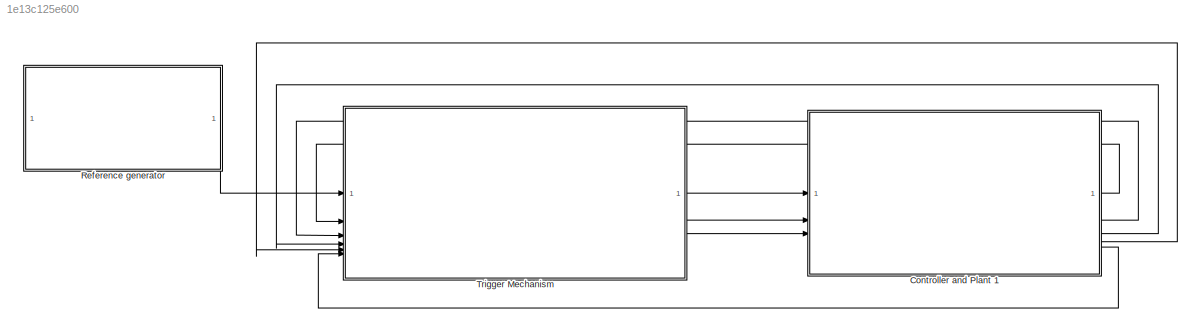
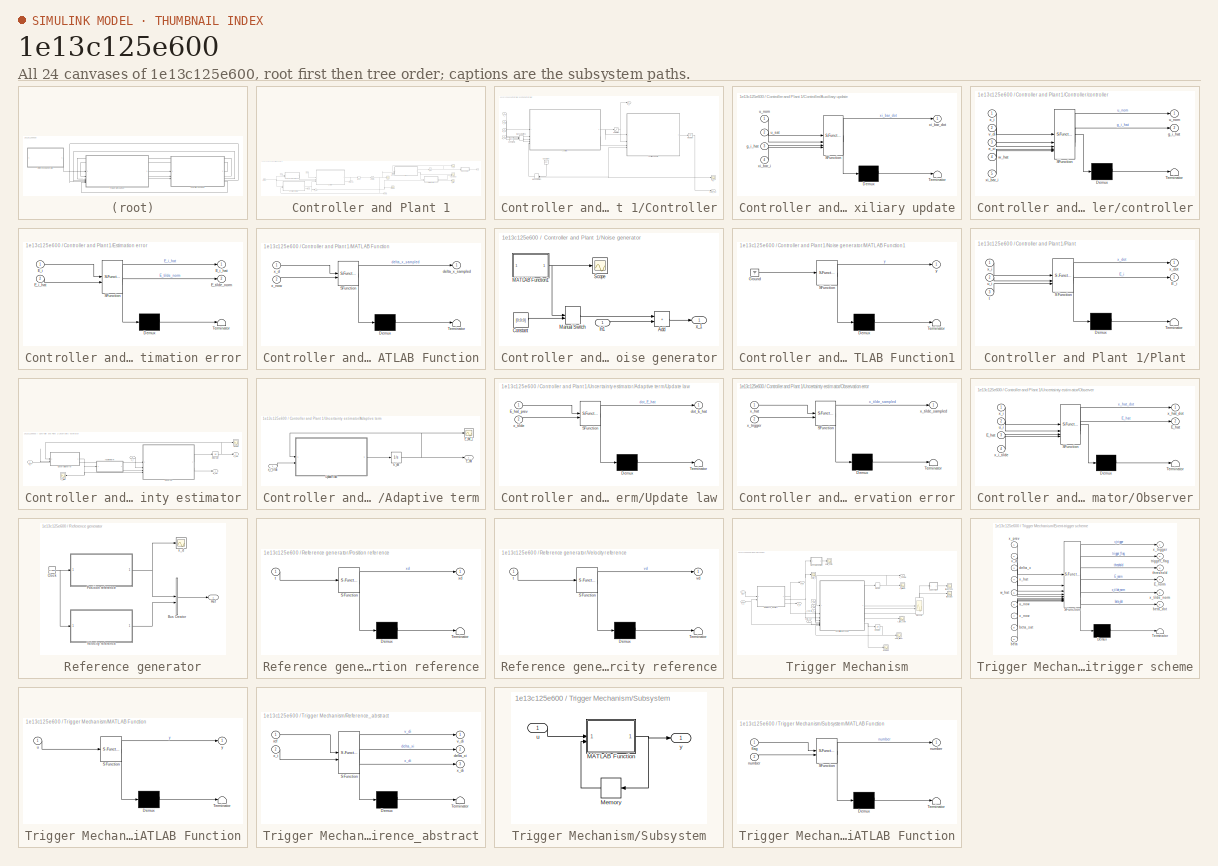
[diagram: thumbnail index - all 24 canvases of the model, root first then tree order]
MODEL slx_1e13c125e600
KIND model
CONFIG AbsTol = auto
CONFIG EnableMultiTasking = off
CONFIG FixedStep = 0.016
CONFIG MaxStep = auto
CONFIG MinStep = auto
CONFIG RelTol = 1e-3
CONFIG SampleTimeConstraint = Unconstrained
CONFIG SolverName = ode5
CONFIG StartTime = 0.0
CONFIG StopTime = 60.0
BLOCK [SubSystem] Controller and Plant 1
BLOCK [Clock] Controller and Plant 1/Clock1
BLOCK [SubSystem] Controller and Plant 1/Controller
BLOCK [SubSystem] Controller and Plant 1/Controller/Auxiliary update
  ErrorFcn = Stateflow.Translate.translate
  PermitHierarchicalResolution = ExplicitOnly
  SFBlockType = MATLAB Function
  TreatAsAtomicUnit = on
BLOCK [Demux] Controller and Plant 1/Controller/Auxiliary update/ Demux 
  Outputs = 1
BLOCK [S-Function] Controller and Plant 1/Controller/Auxiliary update/ SFunction 
  EnableBusSupport = on
  FunctionName = sf_sfun
  PortCounts = [4 2]
  SFcnIsStateOwnerBlock = off
  SFunctionDeploymentMode = off
  Tag = Stateflow S-Function 1
BLOCK [Terminator] Controller and Plant 1/Controller/Auxiliary update/ Terminator 
BLOCK [Inport] Controller and Plant 1/Controller/Auxiliary update/g_i_hat
  Port = 3
BLOCK [Inport] Controller and Plant 1/Controller/Auxiliary update/u_nom
BLOCK [Inport] Controller and Plant 1/Controller/Auxiliary update/u_sat
  Port = 2
BLOCK [Outport] Controller and Plant 1/Controller/Auxiliary update/xi_bar_dot
BLOCK [Inport] Controller and Plant 1/Controller/Auxiliary update/xi_bar_i
  Port = 4
BLOCK [Constant] Controller and Plant 1/Controller/Constant
  NameLocation = left
  Value = [0;0;0]
BLOCK [Constant] Controller and Plant 1/Controller/Constant1
  Value = [0;0;0]
  VectorParams1D = off
BLOCK [Integrator] Controller and Plant 1/Controller/Integrator
  InitialCondition = [0.1;0.1;0.1]
BLOCK [ManualSwitch] Controller and Plant 1/Controller/Manual Switch
  CurrentSetting = 0
  NameLocation = top
BLOCK [ManualSwitch] Controller and Plant 1/Controller/Manual Switch1
BLOCK [Saturate] Controller and Plant 1/Controller/Saturation
  LowerLimit = -0.2
  UpperLimit = 0.2
BLOCK [Outport] Controller and Plant 1/Controller/beta_sat
  Port = 2
BLOCK [SubSystem] Controller and Plant 1/Controller/controller
  ErrorFcn = Stateflow.Translate.translate
  PermitHierarchicalResolution = ExplicitOnly
  SFBlockType = MATLAB Function
  TreatAsAtomicUnit = on
BLOCK [Demux] Controller and Plant 1/Controller/controller/ Demux 
  Outputs = 1
BLOCK [S-Function] Controller and Plant 1/Controller/controller/ SFunction 
  EnableBusSupport = on
  FunctionName = sf_sfun
  PortCounts = [5 3]
  SFcnIsStateOwnerBlock = off
  SFunctionDeploymentMode = off
  Tag = Stateflow S-Function 75
BLOCK [Terminator] Controller and Plant 1/Controller/controller/ Terminator 
BLOCK [Inport] Controller and Plant 1/Controller/controller/e_xi
  Port = 3
BLOCK [Outport] Controller and Plant 1/Controller/controller/g_i_hat
  Port = 2
BLOCK [Outport] Controller and Plant 1/Controller/controller/u_nom
BLOCK [Inport] Controller and Plant 1/Controller/controller/v_di
  Port = 2
BLOCK [Inport] Controller and Plant 1/Controller/controller/w_hat
  Port = 4
BLOCK [Inport] Controller and Plant 1/Controller/controller/x_i
BLOCK [Inport] Controller and Plant 1/Controller/controller/xi_bar_i
  Port = 5
BLOCK [Inport] Controller and Plant 1/Controller/e_xi
  Port = 2
BLOCK [Outport] Controller and Plant 1/Controller/u_i
BLOCK [Inport] Controller and Plant 1/Controller/v_di
BLOCK [Inport] Controller and Plant 1/Controller/w_hat
  Port = 4
BLOCK [Inport] Controller and Plant 1/Controller/x_i
  Port = 3
BLOCK [Scope] Controller and Plant 1/Controller/xi_i
  Floating = off
  NumInputPorts = 1
  ScopeSpecificationString = Simulink.scopes.TimeScopeBlockCfg('CurrentConfiguration', extmgr.ConfigurationSet(extmgr.Configuration('Core','General UI',true),extmgr.Configuration('Core','Source UI',true),extmgr.Configuration('Sources','WiredSimulink',true,'DataLoggingVariableName','beta_sat','DataLoggingSaveFormat','Structure','DataLogging',true),extmgr.Configuration('Visuals','Time Domain',true,'SerializedDisplays',{struct('...<+1529ch>
BLOCK [SubSystem] Controller and Plant 1/Estimation error
  ErrorFcn = Stateflow.Translate.translate
  PermitHierarchicalResolution = ExplicitOnly
  SFBlockType = MATLAB Function
  TreatAsAtomicUnit = on
BLOCK [Demux] Controller and Plant 1/Estimation error/ Demux 
  Outputs = 1
BLOCK [S-Function] Controller and Plant 1/Estimation error/ SFunction 
  EnableBusSupport = on
  FunctionName = sf_sfun
  PortCounts = [2 3]
  SFcnIsStateOwnerBlock = off
  SFunctionDeploymentMode = off
  Tag = Stateflow S-Function 7
BLOCK [Terminator] Controller and Plant 1/Estimation error/ Terminator 
BLOCK [Inport] Controller and Plant 1/Estimation error/E_i
BLOCK [Outport] Controller and Plant 1/Estimation error/E_i_hat
BLOCK [Inport] Controller and Plant 1/Estimation error/E_i_hat 
  Port = 2
BLOCK [Outport] Controller and Plant 1/Estimation error/E_tilde_norm
  Port = 2
BLOCK [SubSystem] Controller and Plant 1/MATLAB Function
  ErrorFcn = Stateflow.Translate.translate
  PermitHierarchicalResolution = ExplicitOnly
  SFBlockType = MATLAB Function
  TreatAsAtomicUnit = on
BLOCK [Demux] Controller and Plant 1/MATLAB Function/ Demux 
  Outputs = 1
BLOCK [S-Function] Controller and Plant 1/MATLAB Function/ SFunction 
  EnableBusSupport = on
  FunctionName = sf_sfun
  PortCounts = [2 2]
  SFcnIsStateOwnerBlock = off
  SFunctionDeploymentMode = off
  Tag = Stateflow S-Function 5
BLOCK [Terminator] Controller and Plant 1/MATLAB Function/ Terminator 
BLOCK [Outport] Controller and Plant 1/MATLAB Function/delta_x_sampled
BLOCK [Inport] Controller and Plant 1/MATLAB Function/x_d
BLOCK [Inport] Controller and Plant 1/MATLAB Function/x_now
  Port = 2
BLOCK [Memory] Controller and Plant 1/Memory
  InitialCondition = [0;0;0]
BLOCK [SubSystem] Controller and Plant 1/Noise generator
BLOCK [Sum] Controller and Plant 1/Noise generator/Add
  IconShape = rectangular
BLOCK [Constant] Controller and Plant 1/Noise generator/Constant
  Value = [0;0;0]
BLOCK [Inport] Controller and Plant 1/Noise generator/In1
BLOCK [SubSystem] Controller and Plant 1/Noise generator/MATLAB Function1
  ErrorFcn = Stateflow.Translate.translate
  PermitHierarchicalResolution = ExplicitOnly
  SFBlockType = MATLAB Function
  TreatAsAtomicUnit = on
BLOCK [Demux] Controller and Plant 1/Noise generator/MATLAB Function1/ Demux 
  Outputs = 1
BLOCK [Ground] Controller and Plant 1/Noise generator/MATLAB Function1/ Ground 
BLOCK [S-Function] Controller and Plant 1/Noise generator/MATLAB Function1/ SFunction 
  EnableBusSupport = on
  FunctionName = sf_sfun
  PortCounts = [1 2]
  SFcnIsStateOwnerBlock = off
  SFunctionDeploymentMode = off
  Tag = Stateflow S-Function 9
BLOCK [Terminator] Controller and Plant 1/Noise generator/MATLAB Function1/ Terminator 
BLOCK [Outport] Controller and Plant 1/Noise generator/MATLAB Function1/y
BLOCK [ManualSwitch] Controller and Plant 1/Noise generator/Manual Switch
  CurrentSetting = 0
BLOCK [Scope] Controller and Plant 1/Noise generator/Scope
  Floating = off
  NumInputPorts = 1
  ScopeSpecificationString = Simulink.scopes.TimeScopeBlockCfg('CurrentConfiguration', extmgr.ConfigurationSet(extmgr.Configuration('Core','General UI',true),extmgr.Configuration('Core','Source UI',true),extmgr.Configuration('Sources','WiredSimulink',true,'DataLoggingVariableName','ScopeData1'),extmgr.Configuration('Visuals','Time Domain',true,'SerializedDisplays',{struct('MinYLimReal','-0.04657','MaxYLimReal','0.04493','YLab...<+1419ch>
BLOCK [Outport] Controller and Plant 1/Noise generator/x_1
BLOCK [SubSystem] Controller and Plant 1/Plant
  ErrorFcn = Stateflow.Translate.translate
  PermitHierarchicalResolution = ExplicitOnly
  SFBlockType = MATLAB Function
  TreatAsAtomicUnit = on
BLOCK [Demux] Controller and Plant 1/Plant/ Demux 
  Outputs = 1
BLOCK [S-Function] Controller and Plant 1/Plant/ SFunction 
  EnableBusSupport = on
  FunctionName = sf_sfun
  PortCounts = [3 3]
  SFcnIsStateOwnerBlock = off
  SFunctionDeploymentMode = off
  Tag = Stateflow S-Function 2
BLOCK [Terminator] Controller and Plant 1/Plant/ Terminator 
BLOCK [Outport] Controller and Plant 1/Plant/E_i
  Port = 2
BLOCK [Inport] Controller and Plant 1/Plant/t
  Port = 3
BLOCK [Inport] Controller and Plant 1/Plant/u_i
  Port = 2
BLOCK [Outport] Controller and Plant 1/Plant/x_dot
BLOCK [Inport] Controller and Plant 1/Plant/x_i
BLOCK [Saturate] Controller and Plant 1/Saturation
  LowerLimit = LowerLimit
  UpperLimit = UpperLimit
BLOCK [Scope] Controller and Plant 1/Scope1
  Floating = off
  NumInputPorts = 1
  ScopeSpecificationString = Simulink.scopes.TimeScopeBlockCfg('CurrentConfiguration', extmgr.ConfigurationSet(extmgr.Configuration('Core','General UI',true),extmgr.Configuration('Core','Source UI',true),extmgr.Configuration('Sources','WiredSimulink',true,'DataLoggingVariableName','ScopeData1'),extmgr.Configuration('Visuals','Time Domain',true,'SerializedDisplays',{struct('MinYLimReal','-0.1352','MaxYLimReal','0.13497','YLabe...<+1477ch>
BLOCK [SubSystem] Controller and Plant 1/Uncertainty estimator
BLOCK [SubSystem] Controller and Plant 1/Uncertainty estimator/Adaptive term
  NameLocation = top
BLOCK [Integrator] Controller and Plant 1/Uncertainty estimator/Adaptive term/E_dot
  InitialCondition = [0;0;0]
BLOCK [Outport] Controller and Plant 1/Uncertainty estimator/Adaptive term/E_hat
BLOCK [Scope] Controller and Plant 1/Uncertainty estimator/Adaptive term/E_hat_1
  Floating = off
  NumInputPorts = 1
  ScopeSpecificationString = Simulink.scopes.TimeScopeBlockCfg('CurrentConfiguration', extmgr.ConfigurationSet(extmgr.Configuration('Core','General UI',true),extmgr.Configuration('Core','Source UI',true),extmgr.Configuration('Sources','WiredSimulink',true,'DataLoggingVariableName','ScopeData2'),extmgr.Configuration('Visuals','Time Domain',true,'SerializedDisplays',{struct('MinYLimReal','-0.13253','MaxYLimReal','0.16244','YLab...<+1430ch>
BLOCK [SubSystem] Controller and Plant 1/Uncertainty estimator/Adaptive term/Update law
  ErrorFcn = Stateflow.Translate.translate
  PermitHierarchicalResolution = ExplicitOnly
  SFBlockType = MATLAB Function
  TreatAsAtomicUnit = on
BLOCK [Demux] Controller and Plant 1/Uncertainty estimator/Adaptive term/Update law/ Demux 
  Outputs = 1
BLOCK [S-Function] Controller and Plant 1/Uncertainty estimator/Adaptive term/Update law/ SFunction 
  EnableBusSupport = on
  FunctionName = sf_sfun
  PortCounts = [2 2]
  SFcnIsStateOwnerBlock = off
  SFunctionDeploymentMode = off
  Tag = Stateflow S-Function 6
BLOCK [Terminator] Controller and Plant 1/Uncertainty estimator/Adaptive term/Update law/ Terminator 
BLOCK [Inport] Controller and Plant 1/Uncertainty estimator/Adaptive term/Update law/E_hat_prev
BLOCK [Outport] Controller and Plant 1/Uncertainty estimator/Adaptive term/Update law/dot_E_hat
BLOCK [Inport] Controller and Plant 1/Uncertainty estimator/Adaptive term/Update law/x_tilde
  Port = 2
BLOCK [Inport] Controller and Plant 1/Uncertainty estimator/Adaptive term/x_i_tilde
BLOCK [Outport] Controller and Plant 1/Uncertainty estimator/E_hat
BLOCK [Integrator] Controller and Plant 1/Uncertainty estimator/Integrator
  InitialCondition = x_hat_1
BLOCK [SubSystem] Controller and Plant 1/Uncertainty estimator/Observation error
  ErrorFcn = Stateflow.Translate.translate
  PermitHierarchicalResolution = ExplicitOnly
  SFBlockType = MATLAB Function
  TreatAsAtomicUnit = on
BLOCK [Demux] Controller and Plant 1/Uncertainty estimator/Observation error/ Demux 
  Outputs = 1
BLOCK [S-Function] Controller and Plant 1/Uncertainty estimator/Observation error/ SFunction 
  EnableBusSupport = on
  FunctionName = sf_sfun
  PortCounts = [2 2]
  SFcnIsStateOwnerBlock = off
  SFunctionDeploymentMode = off
  Tag = Stateflow S-Function 4
BLOCK [Terminator] Controller and Plant 1/Uncertainty estimator/Observation error/ Terminator 
BLOCK [Inport] Controller and Plant 1/Uncertainty estimator/Observation error/x_hat
BLOCK [Outport] Controller and Plant 1/Uncertainty estimator/Observation error/x_tilde_sampled
BLOCK [Inport] Controller and Plant 1/Uncertainty estimator/Observation error/x_trigger
  Port = 2
BLOCK [SubSystem] Controller and Plant 1/Uncertainty estimator/Observer
  ErrorFcn = Stateflow.Translate.translate
  PermitHierarchicalResolution = ExplicitOnly
  SFBlockType = MATLAB Function
  TreatAsAtomicUnit = on
BLOCK [Demux] Controller and Plant 1/Uncertainty estimator/Observer/ Demux 
  Outputs = 1
BLOCK [S-Function] Controller and Plant 1/Uncertainty estimator/Observer/ SFunction 
  EnableBusSupport = on
  FunctionName = sf_sfun
  PortCounts = [4 3]
  SFcnIsStateOwnerBlock = off
  SFunctionDeploymentMode = off
  Tag = Stateflow S-Function 69
BLOCK [Terminator] Controller and Plant 1/Uncertainty estimator/Observer/ Terminator 
BLOCK [Outport] Controller and Plant 1/Uncertainty estimator/Observer/E_hat
  Port = 2
BLOCK [Inport] Controller and Plant 1/Uncertainty estimator/Observer/E_hat 
  Port = 3
BLOCK [Inport] Controller and Plant 1/Uncertainty estimator/Observer/u_i
  Port = 2
BLOCK [Outport] Controller and Plant 1/Uncertainty estimator/Observer/x_hat_dot
BLOCK [Inport] Controller and Plant 1/Uncertainty estimator/Observer/x_i
BLOCK [Inport] Controller and Plant 1/Uncertainty estimator/Observer/x_i_tilde
  Port = 4
BLOCK [Scope] Controller and Plant 1/Uncertainty estimator/Scope
  Floating = off
  NumInputPorts = 1
  ScopeSpecificationString = Simulink.scopes.TimeScopeBlockCfg('CurrentConfiguration', extmgr.ConfigurationSet(extmgr.Configuration('Core','General UI',true),extmgr.Configuration('Core','Source UI',true),extmgr.Configuration('Sources','WiredSimulink',true,'DataLoggingVariableName','ScopeData3'),extmgr.Configuration('Visuals','Time Domain',true,'SerializedDisplays',{struct('MinYLimReal','-0.84382','MaxYLimReal','1.59437','YLab...<+1474ch>
BLOCK [Inport] Controller and Plant 1/Uncertainty estimator/u_i
  Port = 2
BLOCK [Outport] Controller and Plant 1/Uncertainty estimator/x_hat
  Port = 2
BLOCK [Inport] Controller and Plant 1/Uncertainty estimator/x_i
BLOCK [Scope] Controller and Plant 1/Uncertainty estimator/x_i_tilde
  Floating = off
  NameLocation = top
  NumInputPorts = 1
  ScopeSpecificationString = Simulink.scopes.TimeScopeBlockCfg('CurrentConfiguration', extmgr.ConfigurationSet(extmgr.Configuration('Core','General UI',true),extmgr.Configuration('Core','Source UI',true),extmgr.Configuration('Sources','WiredSimulink',true,'DataLoggingVariableName','x_tilde_trigger','DataLoggingSaveFormat','Structure','DataLogging',true),extmgr.Configuration('Visuals','Time Domain',true,'SerializedDisplays',{s...<+1555ch>
BLOCK [Outport] Controller and Plant 1/beta_sat
  Port = 5
BLOCK [Scope] Controller and Plant 1/esti_compare
  Floating = off
  NumInputPorts = 2
  ScopeSpecificationString = Simulink.scopes.TimeScopeBlockCfg('CurrentConfiguration', extmgr.ConfigurationSet(extmgr.Configuration('Core','General UI',true),extmgr.Configuration('Core','Source UI',true),extmgr.Configuration('Sources','WiredSimulink',true,'DataLoggingVariableName','ScopeData1'),extmgr.Configuration('Visuals','Time Domain',true,'SerializedDisplays',{struct('MinYLimReal','-0.13131','MaxYLimReal','0.18183','YLab...<+1588ch>
BLOCK [Scope] Controller and Plant 1/u
  Floating = off
  NumInputPorts = 1
  ScopeSpecificationString = Simulink.scopes.TimeScopeBlockCfg('CurrentConfiguration', extmgr.ConfigurationSet(extmgr.Configuration('Core','General UI',true),extmgr.Configuration('Core','Source UI',true),extmgr.Configuration('Sources','WiredSimulink',true,'DataLoggingVariableName','u','DataLoggingSaveFormat','Array','DataLogging',true),extmgr.Configuration('Visuals','Time Domain',true,'SerializedDisplays',{struct('MinYLimReal...<+1500ch>
BLOCK [Outport] Controller and Plant 1/u_hat
  Port = 4
BLOCK [Outport] Controller and Plant 1/u_now
  Port = 3
BLOCK [Inport] Controller and Plant 1/v_d1
BLOCK [Scope] Controller and Plant 1/w_tilde
  Floating = off
  NumInputPorts = 1
  ScopeSpecificationString = Simulink.scopes.TimeScopeBlockCfg('CurrentConfiguration', extmgr.ConfigurationSet(extmgr.Configuration('Core','General UI',true),extmgr.Configuration('Core','Source UI',true),extmgr.Configuration('Sources','WiredSimulink',true,'DataLoggingVariableName','w_tilde_norm','DataLoggingSaveFormat','Array','DataLogging',true),extmgr.Configuration('Visuals','Time Domain',true,'SerializedDisplays',{struct('...<+1527ch>
BLOCK [Scope] Controller and Plant 1/x
  Floating = off
  NumInputPorts = 1
  ScopeSpecificationString = Simulink.scopes.TimeScopeBlockCfg('CurrentConfiguration', extmgr.ConfigurationSet(extmgr.Configuration('Core','General UI',true),extmgr.Configuration('Core','Source UI',true),extmgr.Configuration('Sources','WiredSimulink',true,'DataLoggingVariableName','x','DataLoggingSaveFormat','Array','DataLogging',true),extmgr.Configuration('Visuals','Time Domain',true,'SerializedDisplays',{struct('MinYLimReal...<+1521ch>
BLOCK [Outport] Controller and Plant 1/x_1
BLOCK [Inport] Controller and Plant 1/x_d
  Port = 2
BLOCK [Outport] Controller and Plant 1/x_hat
  Port = 2
BLOCK [Integrator] Controller and Plant 1/x_int
  InitialCondition = InitialCondition
BLOCK [Inport] Controller and Plant 1/x_trigger
  Port = 3
BLOCK [SubSystem] Reference generator
BLOCK [BusCreator] Reference generator/Bus Creator
  DisplayOption = bar
  InheritFromInputs = on
  Inputs = 2
BLOCK [Clock] Reference generator/Clock
BLOCK [SubSystem] Reference generator/Position reference
  ErrorFcn = Stateflow.Translate.translate
  PermitHierarchicalResolution = ExplicitOnly
  SFBlockType = MATLAB Function
  TreatAsAtomicUnit = on
BLOCK [Demux] Reference generator/Position reference/ Demux 
  Outputs = 1
BLOCK [S-Function] Reference generator/Position reference/ SFunction 
  EnableBusSupport = on
  FunctionName = sf_sfun
  PortCounts = [1 2]
  SFcnIsStateOwnerBlock = off
  SFunctionDeploymentMode = off
  Tag = Stateflow S-Function 105
BLOCK [Terminator] Reference generator/Position reference/ Terminator 
BLOCK [Inport] Reference generator/Position reference/t
BLOCK [Outport] Reference generator/Position reference/xd
BLOCK [Outport] Reference generator/Ref
BLOCK [SubSystem] Reference generator/Velocity reference
  ErrorFcn = Stateflow.Translate.translate
  PermitHierarchicalResolution = ExplicitOnly
  SFBlockType = MATLAB Function
  TreatAsAtomicUnit = on
BLOCK [Demux] Reference generator/Velocity reference/ Demux 
  Outputs = 1
BLOCK [S-Function] Reference generator/Velocity reference/ SFunction 
  EnableBusSupport = on
  FunctionName = sf_sfun
  PortCounts = [1 2]
  SFcnIsStateOwnerBlock = off
  SFunctionDeploymentMode = off
  Tag = Stateflow S-Function 106
BLOCK [Terminator] Reference generator/Velocity reference/ Terminator 
BLOCK [Inport] Reference generator/Velocity reference/t
BLOCK [Outport] Reference generator/Velocity reference/vd
BLOCK [Scope] Reference generator/x_d
  Floating = off
  NumInputPorts = 1
  ScopeSpecificationString = Simulink.scopes.TimeScopeBlockCfg('CurrentConfiguration', extmgr.ConfigurationSet(extmgr.Configuration('Core','General UI',true),extmgr.Configuration('Core','Source UI',true),extmgr.Configuration('Sources','WiredSimulink',true,'DataLoggingVariableName','ref_x1','DataLogging',true,'DataLoggingSaveFormat','Array'),extmgr.Configuration('Visuals','Time Domain',true,'SerializedDisplays',{struct('MinYLi...<+1820ch>
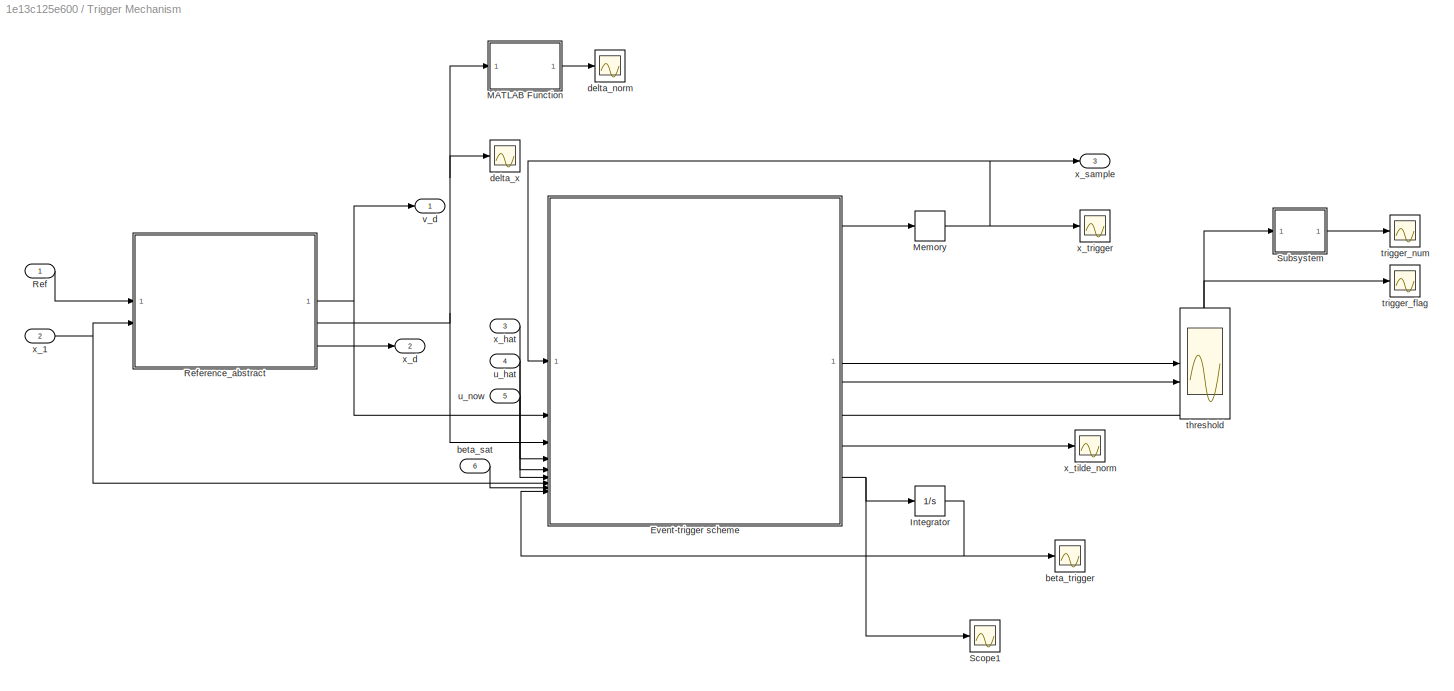
BLOCK [SubSystem] Trigger Mechanism
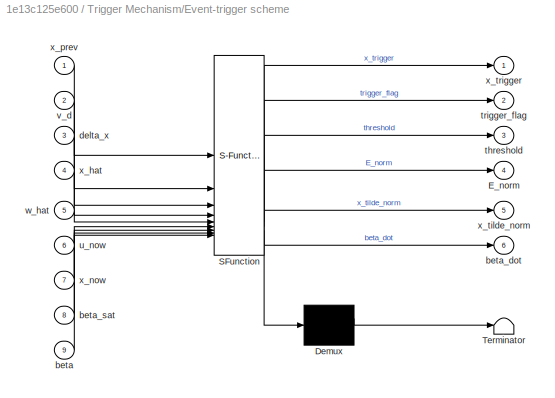
BLOCK [SubSystem] Trigger Mechanism/Event-trigger scheme
  ErrorFcn = Stateflow.Translate.translate
  PermitHierarchicalResolution = ExplicitOnly
  SFBlockType = MATLAB Function
  TreatAsAtomicUnit = on
BLOCK [Demux] Trigger Mechanism/Event-trigger scheme/ Demux 
  Outputs = 1
BLOCK [S-Function] Trigger Mechanism/Event-trigger scheme/ SFunction 
  EnableBusSupport = on
  FunctionName = sf_sfun
  PortCounts = [9 7]
  SFcnIsStateOwnerBlock = off
  SFunctionDeploymentMode = off
  Tag = Stateflow S-Function 14
BLOCK [Terminator] Trigger Mechanism/Event-trigger scheme/ Terminator 
BLOCK [Outport] Trigger Mechanism/Event-trigger scheme/E_norm
  Port = 4
BLOCK [Inport] Trigger Mechanism/Event-trigger scheme/beta
  Port = 9
BLOCK [Outport] Trigger Mechanism/Event-trigger scheme/beta_dot
  Port = 6
BLOCK [Inport] Trigger Mechanism/Event-trigger scheme/beta_sat
  Port = 8
BLOCK [Inport] Trigger Mechanism/Event-trigger scheme/delta_x
  Port = 3
BLOCK [Outport] Trigger Mechanism/Event-trigger scheme/threshold
  Port = 3
BLOCK [Outport] Trigger Mechanism/Event-trigger scheme/trigger_flag
  Port = 2
BLOCK [Inport] Trigger Mechanism/Event-trigger scheme/u_now
  Port = 6
BLOCK [Inport] Trigger Mechanism/Event-trigger scheme/v_d
  Port = 2
BLOCK [Inport] Trigger Mechanism/Event-trigger scheme/w_hat
  Port = 5
BLOCK [Inport] Trigger Mechanism/Event-trigger scheme/x_hat
  Port = 4
BLOCK [Inport] Trigger Mechanism/Event-trigger scheme/x_now
  Port = 7
BLOCK [Inport] Trigger Mechanism/Event-trigger scheme/x_prev
BLOCK [Outport] Trigger Mechanism/Event-trigger scheme/x_tilde_norm
  Port = 5
BLOCK [Outport] Trigger Mechanism/Event-trigger scheme/x_trigger
BLOCK [Integrator] Trigger Mechanism/Integrator
  InitialCondition = [2;2]
BLOCK [SubSystem] Trigger Mechanism/MATLAB Function
  ErrorFcn = Stateflow.Translate.translate
  PermitHierarchicalResolution = ExplicitOnly
  SFBlockType = MATLAB Function
  TreatAsAtomicUnit = on
BLOCK [Demux] Trigger Mechanism/MATLAB Function/ Demux 
  Outputs = 1
BLOCK [S-Function] Trigger Mechanism/MATLAB Function/ SFunction 
  EnableBusSupport = on
  FunctionName = sf_sfun
  PortCounts = [1 2]
  SFcnIsStateOwnerBlock = off
  SFunctionDeploymentMode = off
  Tag = Stateflow S-Function 8
BLOCK [Terminator] Trigger Mechanism/MATLAB Function/ Terminator 
BLOCK [Inport] Trigger Mechanism/MATLAB Function/u
BLOCK [Outport] Trigger Mechanism/MATLAB Function/y
BLOCK [Memory] Trigger Mechanism/Memory
  InitialCondition = [0.8;-1.1;pi/50]
BLOCK [Inport] Trigger Mechanism/Ref
BLOCK [SubSystem] Trigger Mechanism/Reference_abstract
  ErrorFcn = Stateflow.Translate.translate
  PermitHierarchicalResolution = ExplicitOnly
  SFBlockType = MATLAB Function
  TreatAsAtomicUnit = on
BLOCK [Demux] Trigger Mechanism/Reference_abstract/ Demux 
  Outputs = 1
BLOCK [S-Function] Trigger Mechanism/Reference_abstract/ SFunction 
  EnableBusSupport = on
  FunctionName = sf_sfun
  PortCounts = [2 4]
  SFcnIsStateOwnerBlock = off
  SFunctionDeploymentMode = off
  Tag = Stateflow S-Function 3
BLOCK [Terminator] Trigger Mechanism/Reference_abstract/ Terminator 
BLOCK [Outport] Trigger Mechanism/Reference_abstract/delta_xi
  Port = 2
BLOCK [Inport] Trigger Mechanism/Reference_abstract/ref
BLOCK [Outport] Trigger Mechanism/Reference_abstract/v_di
BLOCK [Outport] Trigger Mechanism/Reference_abstract/x_di
  Port = 3
BLOCK [Inport] Trigger Mechanism/Reference_abstract/x_i
  Port = 2
BLOCK [Scope] Trigger Mechanism/Scope1
  Floating = off
  NumInputPorts = 1
  ScopeSpecificationString = Simulink.scopes.TimeScopeBlockCfg('CurrentConfiguration', extmgr.ConfigurationSet(extmgr.Configuration('Core','General UI',true),extmgr.Configuration('Core','Source UI',true),extmgr.Configuration('Sources','WiredSimulink',true,'DataLoggingVariableName','ScopeData3'),extmgr.Configuration('Visuals','Time Domain',true,'SerializedDisplays',{struct('MinYLimReal','-1.80922','MaxYLimReal','0.4948','YLabe...<+1409ch>
BLOCK [SubSystem] Trigger Mechanism/Subsystem
BLOCK [SubSystem] Trigger Mechanism/Subsystem/MATLAB Function
  ErrorFcn = Stateflow.Translate.translate
  PermitHierarchicalResolution = ExplicitOnly
  SFBlockType = MATLAB Function
  TreatAsAtomicUnit = on
BLOCK [Demux] Trigger Mechanism/Subsystem/MATLAB Function/ Demux 
  Outputs = 1
BLOCK [S-Function] Trigger Mechanism/Subsystem/MATLAB Function/ SFunction 
  EnableBusSupport = on
  FunctionName = sf_sfun
  PortCounts = [2 2]
  SFcnIsStateOwnerBlock = off
  SFunctionDeploymentMode = off
  Tag = Stateflow S-Function 11
BLOCK [Terminator] Trigger Mechanism/Subsystem/MATLAB Function/ Terminator 
BLOCK [Inport] Trigger Mechanism/Subsystem/MATLAB Function/flag
BLOCK [Outport] Trigger Mechanism/Subsystem/MATLAB Function/number
BLOCK [Inport] Trigger Mechanism/Subsystem/MATLAB Function/number 
  Port = 2
BLOCK [Memory] Trigger Mechanism/Subsystem/Memory
  NameLocation = top
BLOCK [Inport] Trigger Mechanism/Subsystem/u
BLOCK [Outport] Trigger Mechanism/Subsystem/y
BLOCK [Inport] Trigger Mechanism/beta_sat
  Port = 6
BLOCK [Scope] Trigger Mechanism/beta_trigger
  Floating = off
  NumInputPorts = 1
  ScopeSpecificationString = Simulink.scopes.TimeScopeBlockCfg('CurrentConfiguration', extmgr.ConfigurationSet(extmgr.Configuration('Core','General UI',true),extmgr.Configuration('Core','Source UI',true),extmgr.Configuration('Sources','WiredSimulink',true,'DataLoggingVariableName','beta_trigger','DataLogging',true,'DataLoggingSaveFormat','Structure'),extmgr.Configuration('Visuals','Time Domain',true,'SerializedDisplays',{stru...<+1527ch>
BLOCK [Scope] Trigger Mechanism/delta_norm
  Floating = off
  NumInputPorts = 1
  ScopeSpecificationString = Simulink.scopes.TimeScopeBlockCfg('CurrentConfiguration', extmgr.ConfigurationSet(extmgr.Configuration('Core','General UI',true),extmgr.Configuration('Core','Source UI',true),extmgr.Configuration('Sources','WiredSimulink',true,'DataLoggingVariableName','delta_x_norm','DataLogging',true,'DataLoggingSaveFormat','Array'),extmgr.Configuration('Visuals','Time Domain',true,'SerializedDisplays',{struct('...<+1531ch>
BLOCK [Scope] Trigger Mechanism/delta_x
  Floating = off
  NumInputPorts = 1
  ScopeSpecificationString = Simulink.scopes.TimeScopeBlockCfg('CurrentConfiguration', extmgr.ConfigurationSet(extmgr.Configuration('Core','General UI',true),extmgr.Configuration('Core','Source UI',true),extmgr.Configuration('Sources','WiredSimulink',true,'DataLoggingVariableName','delta_x','DataLogging',true,'DataLoggingSaveFormat','Array'),extmgr.Configuration('Visuals','Time Domain',true,'SerializedDisplays',{struct('MinYL...<+1501ch>
BLOCK [Scope] Trigger Mechanism/threshold
  Floating = off
  NumInputPorts = 2
  ScopeSpecificationString = Simulink.scopes.TimeScopeBlockCfg('CurrentConfiguration', extmgr.ConfigurationSet(extmgr.Configuration('Core','General UI',true),extmgr.Configuration('Core','Source UI',true),extmgr.Configuration('Sources','WiredSimulink',true,'DataLoggingVariableName','trigger_threshold','DataLogging',true,'DataLoggingSaveFormat','Structure'),extmgr.Configuration('Visuals','Time Domain',true,'SerializedDisplays',...<+1538ch>
BLOCK [Scope] Trigger Mechanism/trigger_flag
  Floating = off
  NumInputPorts = 1
  ScopeSpecificationString = Simulink.scopes.TimeScopeBlockCfg('CurrentConfiguration', extmgr.ConfigurationSet(extmgr.Configuration('Core','General UI',true),extmgr.Configuration('Core','Source UI',true),extmgr.Configuration('Sources','WiredSimulink',true,'DataLoggingVariableName','trigger_flag','DataLoggingSaveFormat','Array','DataLogging',true),extmgr.Configuration('Visuals','Time Domain',true,'SerializedDisplays',{struct('...<+1517ch>
BLOCK [Scope] Trigger Mechanism/trigger_num
  Floating = off
  NumInputPorts = 1
  ScopeSpecificationString = Simulink.scopes.TimeScopeBlockCfg('CurrentConfiguration', extmgr.ConfigurationSet(extmgr.Configuration('Core','General UI',true),extmgr.Configuration('Core','Source UI',true),extmgr.Configuration('Sources','WiredSimulink',true,'DataLoggingVariableName','trigger_num','DataLogging',true,'DataLoggingSaveFormat','Array'),extmgr.Configuration('Visuals','Time Domain',true,'SerializedDisplays',{struct('M...<+1528ch>
BLOCK [Inport] Trigger Mechanism/u_hat
  Port = 4
BLOCK [Inport] Trigger Mechanism/u_now
  Port = 5
BLOCK [Outport] Trigger Mechanism/v_d
BLOCK [Inport] Trigger Mechanism/x_1
  Port = 2
BLOCK [Outport] Trigger Mechanism/x_d
  Port = 2
BLOCK [Inport] Trigger Mechanism/x_hat
  Port = 3
BLOCK [Outport] Trigger Mechanism/x_sample
  Port = 3
BLOCK [Scope] Trigger Mechanism/x_tilde_norm
  Floating = off
  NumInputPorts = 1
  ScopeSpecificationString = Simulink.scopes.TimeScopeBlockCfg('CurrentConfiguration', extmgr.ConfigurationSet(extmgr.Configuration('Core','General UI',true),extmgr.Configuration('Core','Source UI',true),extmgr.Configuration('Sources','WiredSimulink',true,'DataLoggingVariableName','x_tilde_norm','DataLogging',true,'DataLoggingSaveFormat','Array'),extmgr.Configuration('Visuals','Time Domain',true,'SerializedDisplays',{struct('...<+1531ch>
BLOCK [Scope] Trigger Mechanism/x_trigger
  Floating = off
  NumInputPorts = 1
  ScopeSpecificationString = Simulink.scopes.TimeScopeBlockCfg('CurrentConfiguration', extmgr.ConfigurationSet(extmgr.Configuration('Core','General UI',true),extmgr.Configuration('Core','Source UI',true),extmgr.Configuration('Sources','WiredSimulink',true,'DataLoggingVariableName','x_trigger','DataLoggingSaveFormat','Structure','DataLogging',true),extmgr.Configuration('Visuals','Time Domain',true,'SerializedDisplays',{struct(...<+1530ch>
LINE Controller and Plant 1/Clock1:1 -> Controller and Plant 1/Plant:3
LINE Controller and Plant 1/Controller/Auxiliary update:1 -> Controller and Plant 1/Controller/Integrator:1
LINE Controller and Plant 1/Controller/Constant1:1 -> Controller and Plant 1/Controller/Manual Switch1:2
LINE Controller and Plant 1/Controller/Constant:1 -> Controller and Plant 1/Controller/Manual Switch:1
NET Controller and Plant 1/Controller/Integrator:1 -> Controller and Plant 1/Controller/Auxiliary update:4, Controller and Plant 1/Controller/Manual Switch:2, Controller and Plant 1/Controller/beta_sat:1, Controller and Plant 1/Controller/xi_i:1
LINE Controller and Plant 1/Controller/Manual Switch1:1 -> Controller and Plant 1/Controller/controller:4
LINE Controller and Plant 1/Controller/Manual Switch:1 -> Controller and Plant 1/Controller/controller:5
NET Controller and Plant 1/Controller/Saturation:1 -> Controller and Plant 1/Controller/Auxiliary update:2, Controller and Plant 1/Controller/u_i:1
NET Controller and Plant 1/Controller/controller:1 -> Controller and Plant 1/Controller/Auxiliary update:1, Controller and Plant 1/Controller/Saturation:1
LINE Controller and Plant 1/Controller/controller:2 -> Controller and Plant 1/Controller/Auxiliary update:3
LINE Controller and Plant 1/Controller/e_xi:1 -> Controller and Plant 1/Controller/controller:3
LINE Controller and Plant 1/Controller/v_di:1 -> Controller and Plant 1/Controller/controller:2
LINE Controller and Plant 1/Controller/w_hat:1 -> Controller and Plant 1/Controller/Manual Switch1:1
LINE Controller and Plant 1/Controller/x_i:1 -> Controller and Plant 1/Controller/controller:1
LINE Controller and Plant 1/Controller:1 -> Controller and Plant 1/Memory:1
LINE Controller and Plant 1/Controller:2 -> Controller and Plant 1/beta_sat:1
LINE Controller and Plant 1/Estimation error:1 -> Controller and Plant 1/esti_compare:2
LINE Controller and Plant 1/Estimation error:2 -> Controller and Plant 1/w_tilde:1
LINE Controller and Plant 1/MATLAB Function:1 -> Controller and Plant 1/Controller:2
LINE Controller and Plant 1/Memory:1 -> Controller and Plant 1/Saturation:1
LINE Controller and Plant 1/Noise generator/Add:1 -> Controller and Plant 1/Noise generator/x_1:1
LINE Controller and Plant 1/Noise generator/Constant:1 -> Controller and Plant 1/Noise generator/Manual Switch:2
LINE Controller and Plant 1/Noise generator/In1:1 -> Controller and Plant 1/Noise generator/Add:2
NET Controller and Plant 1/Noise generator/MATLAB Function1:1 -> Controller and Plant 1/Noise generator/Manual Switch:1, Controller and Plant 1/Noise generator/Scope:1
LINE Controller and Plant 1/Noise generator/Manual Switch:1 -> Controller and Plant 1/Noise generator/Add:1
LINE Controller and Plant 1/Noise generator:1 -> Controller and Plant 1/x_1:1
LINE Controller and Plant 1/Plant:1 -> Controller and Plant 1/x_int:1
NET Controller and Plant 1/Plant:2 -> Controller and Plant 1/Estimation error:1, Controller and Plant 1/esti_compare:1
NET Controller and Plant 1/Saturation:1 -> Controller and Plant 1/Plant:2, Controller and Plant 1/Uncertainty estimator:2, Controller and Plant 1/u:1, Controller and Plant 1/u_now:1
NET Controller and Plant 1/Uncertainty estimator/Adaptive term/E_dot:1 -> Controller and Plant 1/Uncertainty estimator/Adaptive term/E_hat:1, Controller and Plant 1/Uncertainty estimator/Adaptive term/E_hat_1:1, Controller and Plant 1/Uncertainty estimator/Adaptive term/Update law:1
LINE Controller and Plant 1/Uncertainty estimator/Adaptive term/Update law:1 -> Controller and Plant 1/Uncertainty estimator/Adaptive term/E_dot:1
LINE Controller and Plant 1/Uncertainty estimator/Adaptive term/x_i_tilde:1 -> Controller and Plant 1/Uncertainty estimator/Adaptive term/Update law:2
LINE Controller and Plant 1/Uncertainty estimator/Adaptive term:1 -> Controller and Plant 1/Uncertainty estimator/Observer:3
NET Controller and Plant 1/Uncertainty estimator/Integrator:1 -> Controller and Plant 1/Uncertainty estimator/Observation error:1, Controller and Plant 1/Uncertainty estimator/Scope:1, Controller and Plant 1/Uncertainty estimator/x_hat:1
NET Controller and Plant 1/Uncertainty estimator/Observation error:1 -> Controller and Plant 1/Uncertainty estimator/Adaptive term:1, Controller and Plant 1/Uncertainty estimator/Observer:4, Controller and Plant 1/Uncertainty estimator/x_i_tilde:1
LINE Controller and Plant 1/Uncertainty estimator/Observer:1 -> Controller and Plant 1/Uncertainty estimator/Integrator:1
LINE Controller and Plant 1/Uncertainty estimator/Observer:2 -> Controller and Plant 1/Uncertainty estimator/E_hat:1
LINE Controller and Plant 1/Uncertainty estimator/u_i:1 -> Controller and Plant 1/Uncertainty estimator/Observer:2
NET Controller and Plant 1/Uncertainty estimator/x_i:1 -> Controller and Plant 1/Uncertainty estimator/Observation error:2, Controller and Plant 1/Uncertainty estimator/Observer:1
NET Controller and Plant 1/Uncertainty estimator:1 -> Controller and Plant 1/Controller:4, Controller and Plant 1/Estimation error:2, Controller and Plant 1/Scope1:1, Controller and Plant 1/u_hat:1
LINE Controller and Plant 1/Uncertainty estimator:2 -> Controller and Plant 1/x_hat:1
LINE Controller and Plant 1/v_d1:1 -> Controller and Plant 1/Controller:1
LINE Controller and Plant 1/x_d:1 -> Controller and Plant 1/MATLAB Function:1
NET Controller and Plant 1/x_int:1 -> Controller and Plant 1/Noise generator:1, Controller and Plant 1/Plant:1, Controller and Plant 1/x:1
NET Controller and Plant 1/x_trigger:1 -> Controller and Plant 1/Controller:3, Controller and Plant 1/MATLAB Function:2, Controller and Plant 1/Uncertainty estimator:1
LINE Controller and Plant 1:1 -> Trigger Mechanism:2
LINE Controller and Plant 1:2 -> Trigger Mechanism:3
LINE Controller and Plant 1:3 -> Trigger Mechanism:4
LINE Controller and Plant 1:4 -> Trigger Mechanism:5
LINE Controller and Plant 1:5 -> Trigger Mechanism:6
LINE Reference generator/Bus Creator:1 -> Reference generator/Ref:1
NET Reference generator/Clock:1 -> Reference generator/Position reference:1, Reference generator/Velocity reference:1
NET Reference generator/Position reference:1 -> Reference generator/Bus Creator:1, Reference generator/x_d:1
LINE Reference generator/Velocity reference:1 -> Reference generator/Bus Creator:2
LINE Reference generator:1 -> Trigger Mechanism:1
LINE Trigger Mechanism/Event-trigger scheme:1 -> Trigger Mechanism/Memory:1
NET Trigger Mechanism/Event-trigger scheme:2 -> Trigger Mechanism/Subsystem:1, Trigger Mechanism/trigger_flag:1
LINE Trigger Mechanism/Event-trigger scheme:3 -> Trigger Mechanism/threshold:1
LINE Trigger Mechanism/Event-trigger scheme:4 -> Trigger Mechanism/threshold:2
LINE Trigger Mechanism/Event-trigger scheme:5 -> Trigger Mechanism/x_tilde_norm:1
NET Trigger Mechanism/Event-trigger scheme:6 -> Trigger Mechanism/Integrator:1, Trigger Mechanism/Scope1:1
NET Trigger Mechanism/Integrator:1 -> Trigger Mechanism/Event-trigger scheme:9, Trigger Mechanism/beta_trigger:1
LINE Trigger Mechanism/MATLAB Function:1 -> Trigger Mechanism/delta_norm:1
NET Trigger Mechanism/Memory:1 -> Trigger Mechanism/Event-trigger scheme:1, Trigger Mechanism/x_sample:1, Trigger Mechanism/x_trigger:1
LINE Trigger Mechanism/Ref:1 -> Trigger Mechanism/Reference_abstract:1
NET Trigger Mechanism/Reference_abstract:1 -> Trigger Mechanism/Event-trigger scheme:2, Trigger Mechanism/v_d:1
NET Trigger Mechanism/Reference_abstract:2 -> Trigger Mechanism/Event-trigger scheme:3, Trigger Mechanism/MATLAB Function:1, Trigger Mechanism/delta_x:1
LINE Trigger Mechanism/Reference_abstract:3 -> Trigger Mechanism/x_d:1
NET Trigger Mechanism/Subsystem/MATLAB Function:1 -> Trigger Mechanism/Subsystem/Memory:1, Trigger Mechanism/Subsystem/y:1
LINE Trigger Mechanism/Subsystem/Memory:1 -> Trigger Mechanism/Subsystem/MATLAB Function:2
LINE Trigger Mechanism/Subsystem/u:1 -> Trigger Mechanism/Subsystem/MATLAB Function:1
LINE Trigger Mechanism/Subsystem:1 -> Trigger Mechanism/trigger_num:1
LINE Trigger Mechanism/beta_sat:1 -> Trigger Mechanism/Event-trigger scheme:8
LINE Trigger Mechanism/u_hat:1 -> Trigger Mechanism/Event-trigger scheme:5
LINE Trigger Mechanism/u_now:1 -> Trigger Mechanism/Event-trigger scheme:6
NET Trigger Mechanism/x_1:1 -> Trigger Mechanism/Event-trigger scheme:7, Trigger Mechanism/Reference_abstract:2
LINE Trigger Mechanism/x_hat:1 -> Trigger Mechanism/Event-trigger scheme:4
LINE Trigger Mechanism:1 -> Controller and Plant 1:1
LINE Trigger Mechanism:2 -> Controller and Plant 1:2
LINE Trigger Mechanism:3 -> Controller and Plant 1:3
note: NET lines group one-source signal fan-out (src -> all destinations, sorted); 1:1 wires keep LINE
CHART Trigger Mechanism/Event-trigger scheme states=1 transitions=1
  STATE_LABEL 'eML_blk_kernel()'
  STATE_LABEL 'SCRIPT:\nfunction [x_trigger, trigger_flag, threshold, E_norm, x_tilde_norm, beta_dot] = event_trigger(x_prev, v_d, delta_x, x_hat, w_hat, u_now, x_now, beta_sat, beta)\n\n% Observer\neta_1 = [21,21,3];\nk_1 = [3,3,1];\nrho_2 = 0.08;\nxi_2 = 0.5;\ngamma_2 = 0.6;\nalpha_2 = 1;\n\n% Controller\nk_2 = [3,3,1.5];\nk_3 = [8,8,2];\nrho_3 = 0.08;\nxi_3 = 0.5;\ngamma_3 = 0.6;\nalpha_3 = 1;\nrho_4 = 0.08;\nL_1 = 1.74;\nL_2 = ...<+1698ch>'
CHART Controller and Plant 1/Uncertainty estimator/Observer states=1 transitions=1
  STATE_LABEL 'eML_blk_kernel()'
  STATE_LABEL 'SCRIPT:\nfunction [x_hat_dot, E_hat] = observer(x_i, u_i, E_hat, x_i_tilde)\n\n%% observer itself\nRadius_esti=[0.13,0.13,0.13];\n\nserial_num = 1;\ndimension = 3; \n\nk_1 = diag([3,3,1]);\n% k_1 = diag([2.5,2.5,0.5]);\n% k_2 = diag([0.5,0.5,0.3]);\n% p = 11/13;\n\nR_hat=Radius_esti(serial_num);\n\ntheta = x_i(dimension);\n\ng_i_hat = [-sin(theta) -sin(pi/3 - theta) sin(pi/3 + theta);\n            cos(theta) -cos(pi...<+150ch>'
CHART Controller and Plant 1/Controller/controller states=1 transitions=1
  STATE_LABEL 'eML_blk_kernel()'
  STATE_LABEL 'SCRIPT:\nfunction [u_nom, g_i_hat] = controller(x_i, v_di, e_xi, w_hat, xi_bar_i)\n\n%% Reverse of the control gain matrix\nRadius_esti=[0.13,0.13,0.13];\n\nserial_num = 1;\ndimension = 3; \n\nR_hat=Radius_esti(serial_num);\n\ntheta = x_i(dimension);\n\ng_i_hat = [-sin(theta) -sin(pi/3 - theta) sin(pi/3 + theta);\n        cos(theta) -cos(pi/3 - theta) -cos(pi/3+ theta);\n        1/R_hat 1/R_hat 1/R_hat];\n\ng_inve...<+165ch>'
CHART Reference generator/Position reference states=1 transitions=1
  STATE_LABEL 'eML_blk_kernel()'
  STATE_LABEL 'SCRIPT:\nfunction xd = x_d(t)\n\n% bias_x=0.2*t;\n% bias_y=sin(0.3*t);\n\nbias_x= 0;\nbias_y= - t/60 - 1;\n\nradius=0.35;\nw= - pi/13;\n\nphase=0;\n\nx1=[radius*cos(w*t+2*pi/3*1+phase)+bias_x ; 1.5 * radius*sin(w*t+2*pi/3*1+phase)+bias_y ; 0];\n% x2=[radius*cos(w*t+2*pi/3*2+phase)+bias_x ; 1.5 * radius*sin(w*t+2*pi/3*2+phase)+bias_y ; 0];\n% x3=[radius*cos(w*t+2*pi/3*3+phase)+bias_x ; 1.5 * radius*sin(w*t+2*pi/3*...<+55ch>'
CHART Reference generator/Velocity reference states=1 transitions=1
  STATE_LABEL 'eML_blk_kernel()'
  STATE_LABEL 'SCRIPT:\nfunction vd = v_d(t)\n\nbias_x_v = 0;\nbias_y_v = - 1/60;\n\nradius = 0.35;\nw = - pi/13;\n\nphase = 0;\n\nv1 = [- radius * w * sin(w*t+2*pi/3*1+phase)+bias_x_v; 1.5 * radius * w * cos(w*t+2*pi/3*1+phase) + bias_y_v; 0];\n% v2=[- radius * w * sin(w*t+2*pi/3*2+phase)+bias_x_v; 1.5 * radius * w * cos(w*t+2*pi/3*2+phase) + bias_y_v; 0];\n% v3=[- radius * w * sin(w*t+2*pi/3*3+phase)+bias_x_v; 1.5 * radius...<+60ch>'
CHART Controller and Plant 1/Controller/Auxiliary update states=1 transitions=1
  STATE_LABEL 'eML_blk_kernel()'
  STATE_LABEL 'SCRIPT:\nfunction xi_bar_dot = auxi_updata(u_nom, u_sat, g_i_hat, xi_bar_i)\n\neta_3 = diag([6,6,1]);\n\nu_diff = u_nom - u_sat;\n\neta_4 = diag([0.5,0.5,0.2]);\n\nif norm(xi_bar_i)>=0.005\n    xi_bar_dot = eta_3 * g_i_hat * u_diff - eta_4 * xi_bar_i - 1 * norm(u_diff)^2/norm(xi_bar_i)^2 * xi_bar_i;\nelse\n    xi_bar_dot = eta_3 * g_i_hat * u_diff - eta_4 * xi_bar_i;\nend\n\n\nend\n\n'
CHART Controller and Plant 1/Plant states=1 transitions=1
  STATE_LABEL 'eML_blk_kernel()'
  STATE_LABEL 'SCRIPT:\nfunction [x_dot, E_i ] = model(x_i, u_i, t)\n\n%% First-order plants for robots\nRadius=[0.13,0.13,0.13];\nRadius_esti=[0.13,0.13,0.13];\n\nserial_num = 1;\n\nR = Radius(serial_num);\nR_hat = Radius_esti(serial_num);\n\nx = x_i(1);\ny = x_i(2);\ntheta = x_i(3);\n\nw_i =  [0.1 * cos(0.8* t - serial_num * pi/2); 0.1 * sin(0.8*t + serial_num * pi/3); 0.08*sin(0.1*t + serial_num * 5 *pi/4)];\n%d =  0.4* cos(0...<+384ch>'
CHART Trigger Mechanism/Reference_abstract states=1 transitions=1
  STATE_LABEL 'eML_blk_kernel()'
  STATE_LABEL 'SCRIPT:\nfunction [v_di, delta_xi, x_di] = ref_obtain(ref, x_i)\n\n%% Basic parameters\n\ndimension = 3;\nnum_agent = 1;\nserial_num = 1;\n\nx_d = ref(1+dimension*0:dimension*num_agent);\nv_d = ref(1+dimension*num_agent:2*dimension*num_agent);\n\nx_di = x_d( (serial_num - 1)*dimension+1 : serial_num*dimension );\nv_di = v_d( (serial_num - 1)*dimension+1 : serial_num*dimension );\n\ndelta_xi = x_i - x_di; \n\nend\n\n...<+1ch>'
CHART Controller and Plant 1/Uncertainty estimator/Observation error states=1 transitions=1
  STATE_LABEL 'eML_blk_kernel()'
  STATE_LABEL 'SCRIPT:\nfunction x_tilde_sampled = error_calculation(x_hat, x_trigger)\n\nx_tilde_sampled = x_trigger - x_hat;\n\nend\n'
CHART Controller and Plant 1/MATLAB Function states=1 transitions=1
  STATE_LABEL 'eML_blk_kernel()'
  STATE_LABEL 'SCRIPT:\nfunction delta_x_sampled = tracking_error(x_d, x_now)\n\ndelta_x_sampled = x_now - x_d;\n\nend\n'
CHART Controller and Plant 1/Uncertainty estimator/Adaptive term/Update law states=1 transitions=1
  STATE_LABEL 'eML_blk_kernel()'
  STATE_LABEL 'SCRIPT:\nfunction dot_E_hat = adaptive_law(E_hat_prev, x_tilde)\n\neta_1 = diag([21,21,3]);\n% eta_1 = diag([5,5,1.5]);\n% eta_3 = diag([3,3,0.5]);\n% p = 7/11;\n\neta_2 = 0.7;\n\n% dot_E_hat = eta_1 * x_tilde + eta_3 * diag(sign(x_tilde)) * abs(x_tilde).^p - eta_2 * E_hat_prev;\ndot_E_hat = eta_1 * x_tilde - eta_2 * E_hat_prev;\n% dot_E_hat = eta_1 * x_tilde;\n\nend\n\n'
CHART Controller and Plant 1/Estimation error states=1 transitions=1
  STATE_LABEL 'eML_blk_kernel()'
  STATE_LABEL 'SCRIPT:\nfunction [E_i_hat, E_tilde_norm] = esti_error(E_i, E_i_hat)\n\nE_i_tilde = E_i - E_i_hat;\nE_tilde_norm = norm(E_i_tilde);\n\nend\n'
CHART Trigger Mechanism/MATLAB Function states=1 transitions=1
  STATE_LABEL 'eML_blk_kernel()'
  STATE_LABEL 'SCRIPT:\nfunction y = fcn(u)\n\ny = norm(u);\n\nend\n'
CHART Controller and Plant 1/Noise generator/MATLAB Function1 states=1 transitions=1
  STATE_LABEL 'eML_blk_kernel()'
  STATE_LABEL 'SCRIPT:\nfunction y = fcn()\n\ny = diag([0.001, 0.001, 0.01]) * randn(3,1);\n\nend\n'
CHART Trigger Mechanism/Subsystem/MATLAB Function states=1 transitions=1
  STATE_LABEL 'eML_blk_kernel()'
  STATE_LABEL 'SCRIPT:\nfunction number = counter(flag, number)\n\nif flag == 1\n    number = number + 1;\nend\n\nend\n'
CHART  states=0 transitions=0
CHART  states=0 transitions=0
CHART  states=0 transitions=0
CHART  states=0 transitions=0
CHART  states=0 transitions=0
CHART  states=0 transitions=0
CHART  states=0 transitions=0
CHART  states=0 transitions=0
CHART  states=0 transitions=0
CHART  states=0 transitions=0
CHART  states=0 transitions=0
CHART  states=0 transitions=0
CHART  states=0 transitions=0
CHART  states=0 transitions=0
CHART  states=0 transitions=0
